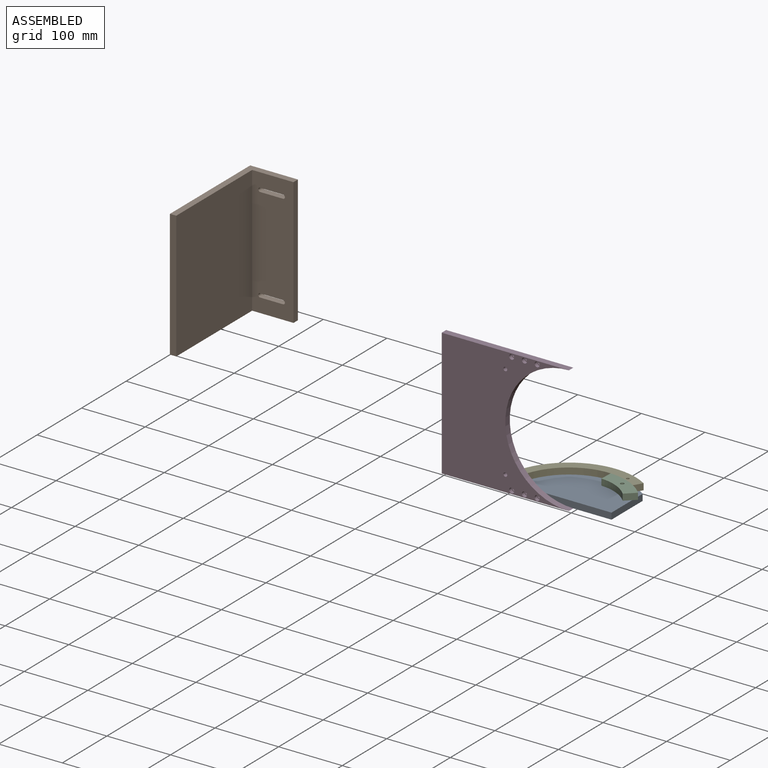
[diagram: assembled view]
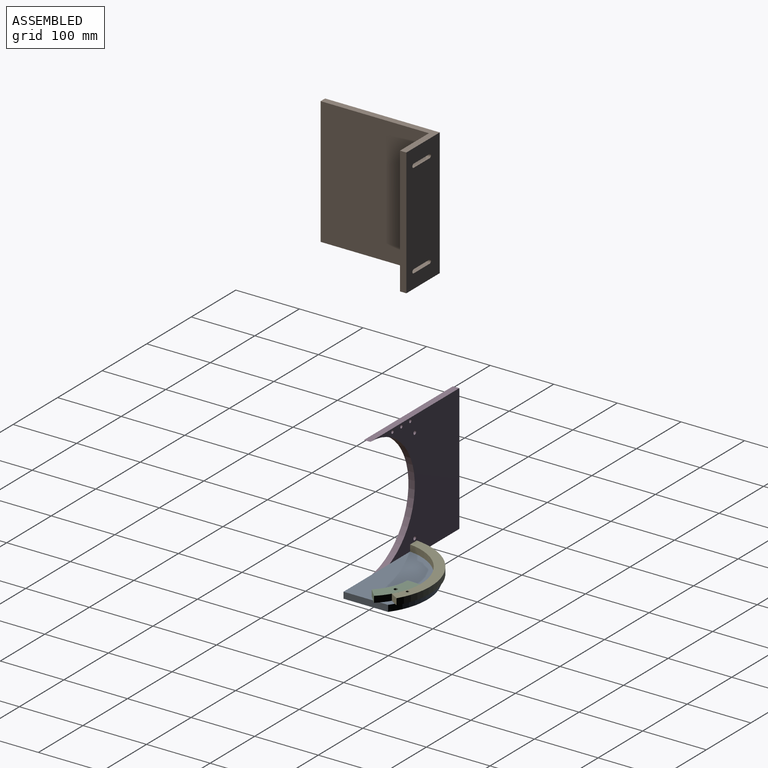
[diagram: assembled view, second angle]
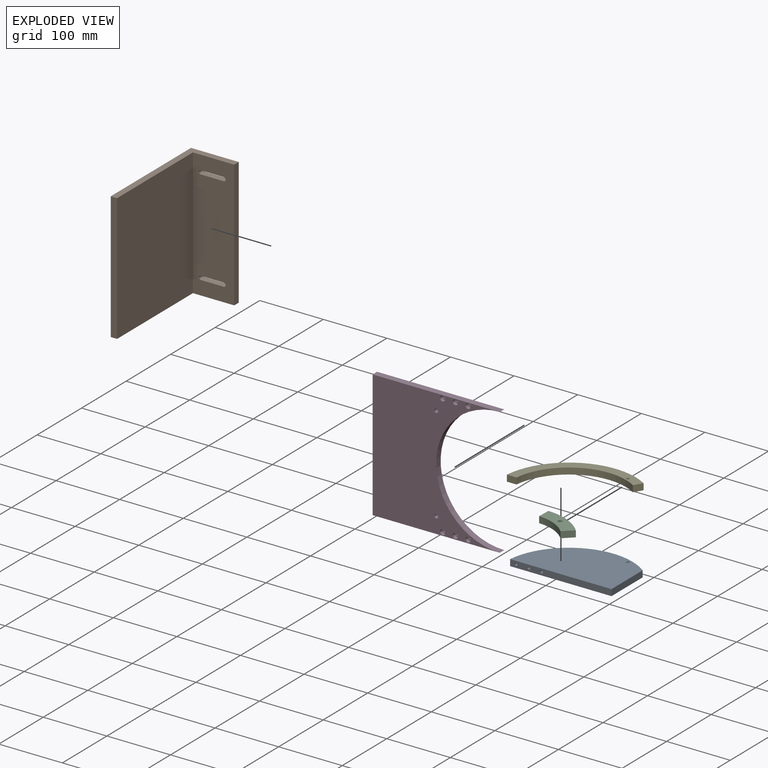
[diagram: exploded view]
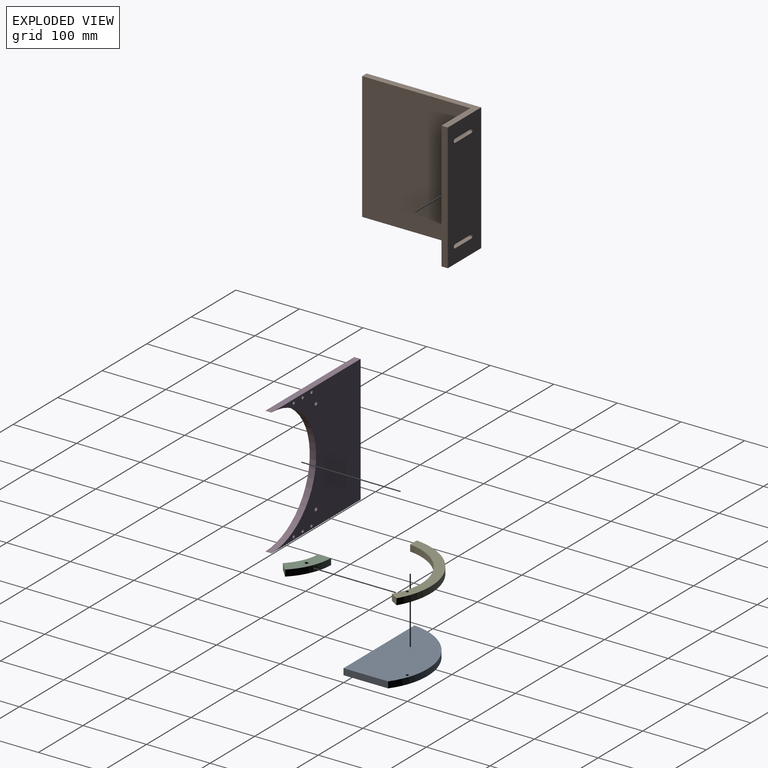
[diagram: exploded view, second angle]
ASSEMBLY  parts=5 mates=3
PART A: 12 faces, bbox 159.5x90x10 mm
  f0: cylinder r=100mm len=159.5mm, axis (0,0,-1), area 2114.1mm2, adj f1,f2,f4,f5
  f1: plane 159.5x10mm, normal (0,-1,0), area 1553.4mm2, adj f0,f2,f4,f5,f6,f8,f10
  f2: plane 70x10mm, normal (1,0,0), area 700mm2, adj f0,f1,f4,f5
  f3: cylinder r=2.32mm len=10mm, axis (0,0,-1), area 145.6mm2, adj f4,f5
  f4: plane 159.5x90mm, normal (0,0,1), area 11856.3mm2, adj f0,f1,f2,f3
  f5: plane 159.5x90mm, normal (0,0,-1), area 11856.3mm2, adj f0,f1,f2,f3
  f6: cylinder r=2.1mm len=25mm, axis (0,-1,0), area 329.9mm2, adj f1,f7
  f7: plane 4.2x4.2mm, normal (0,-1,0), area 13.9mm2, adj f6
  f8: cylinder r=2.1mm len=25mm, axis (0,-1,0), area 329.9mm2, adj f1,f9
  f9: plane 4.2x4.2mm, normal (0,-1,0), area 13.9mm2, adj f8
  f10: cylinder r=2.1mm len=25mm, axis (0,-1,0), area 329.9mm2, adj f1,f11
  f11: plane 4.2x4.2mm, normal (0,-1,0), area 13.9mm2, adj f10
PART B: 16 faces, bbox 180.3x200x75 mm
  f0: plane 200x75mm, normal (1,0,0), area 14515.8mm2, adj f2,f3,f6,f7,f8,f9,f10,f11
  f1: plane 200x65mm, normal (-1,0,0), area 12515.8mm2, adj f2,f3,f5,f7,f8,f9,f10,f11
  f2: plane 180.29x75mm, normal (0,-1,0), area 2452.9mm2, adj f0,f1,f4,f5,f6,f7
  f3: plane 180.29x75mm, normal (0,1,0), area 2452.9mm2, adj f0,f1,f4,f5,f6,f7
  f4: plane 200x10mm, normal (-1,0,0), area 2000mm2, adj f2,f3,f5,f6
  f5: plane 200x170.29mm, normal (0,0,1), area 34058.5mm2, adj f1,f2,f3,f4
  f6: plane 200x180.29mm, normal (0,0,-1), area 36058.5mm2, adj f0,f2,f3,f4
  f7: plane 200x10mm, normal (0,0,1), area 2000mm2, adj f0,f1,f2,f3
  f8: plane 35.02x10mm, normal (0,1,0), area 350.2mm2, adj f0,f1,f9,f11
  f9: cylinder r=3mm len=10mm, axis (1,0,0), area 98mm2, adj f0,f1,f8,f10
  f10: plane 35.78x10mm, normal (0,-1,0), area 357.8mm2, adj f0,f1,f9,f11
  f11: cylinder r=3mm len=10mm, axis (1,0,0), area 98mm2, adj f0,f1,f8,f10
  f12: plane 35.02x10mm, normal (0,1,0), area 350.2mm2, adj f0,f1,f13,f15
  f13: cylinder r=3mm len=10mm, axis (1,0,0), area 98mm2, adj f0,f1,f12,f14
  f14: plane 35.78x10mm, normal (0,-1,0), area 357.8mm2, adj f0,f1,f13,f15
  f15: cylinder r=3mm len=10mm, axis (1,0,0), area 98mm2, adj f0,f1,f12,f14
PART C: 7 faces, bbox 55.4x57.3x10 mm
  f0: plane 18.7x10mm, normal (-0.35,-0.94,0), area 200mm2, adj f1,f3,f5,f6
  f1: cylinder r=70mm len=39.01mm, axis (0,0,1), area 549.8mm2, adj f0,f2,f5,f6
  f2: plane 18.24x10mm, normal (0.91,0.41,0), area 200mm2, adj f1,f3,f5,f6
  f3: cylinder r=90mm len=50.16mm, axis (0,0,1), area 706.9mm2, adj f0,f2,f5,f6
  f4: cylinder r=2.93mm len=10mm, axis (0,0,1), area 184mm2, adj f5,f6
  f5: plane 57.25x55.42mm, normal (0,0,-1), area 1229.7mm2, adj f0,f1,f2,f3,f4
  f6: plane 57.25x55.42mm, normal (0,0,1), area 1229.7mm2, adj f0,f1,f2,f3,f4
PART D: 26 faces, bbox 200x200x10 mm
  f0: plane 200x10mm, normal (0,1,0), area 2000mm2, adj f1,f8,f12,f13
  f1: plane 200x10mm, normal (-1,0,0), area 2000mm2, adj f0,f2,f12,f13
  f2: plane 200x10mm, normal (0,-1,0), area 2000mm2, adj f1,f8,f12,f13
  f3: cylinder r=2.5mm len=5mm, axis (0,0,-1), area 70.7mm2, adj f12,f19
  f4: cylinder r=2.5mm len=5mm, axis (0,0,-1), area 70.7mm2, adj f12,f21
  f5: cylinder r=2.5mm len=5mm, axis (0,0,-1), area 70.7mm2, adj f12,f23
  f6: cylinder r=2.5mm len=5mm, axis (0,0,-1), area 70.7mm2, adj f12,f25
  f7: cylinder r=2.5mm len=5mm, axis (0,0,-1), area 70.7mm2, adj f12,f15
  f8: cylinder r=100mm len=200mm, axis (0,0,-1), area 3141.6mm2, adj f0,f2,f12,f13
  f9: cylinder r=3mm len=10mm, axis (0,0,-1), area 188.5mm2, adj f12,f13
  f10: cylinder r=3mm len=10mm, axis (0,0,-1), area 188.5mm2, adj f12,f13
  f11: cylinder r=2.5mm len=5mm, axis (0,0,-1), area 70.7mm2, adj f12,f17
  f12: plane 200x200mm, normal (0,0,1), area 24117.7mm2, adj f0,f1,f2,f3,f4,f5,f6,f7
  f13: plane 200x200mm, normal (0,0,-1), area 23933.9mm2, adj f0,f1,f2,f8,f9,f10,f14,f16
  f14: cylinder r=4mm len=8mm, axis (0,0,-1), area 138.2mm2, adj f13,f15
  f15: plane 8x8mm, normal (0,0,-1), area 30.6mm2, adj f7,f14
  f16: cylinder r=4mm len=8mm, axis (0,0,-1), area 138.2mm2, adj f13,f17
  f17: plane 8x8mm, normal (0,0,-1), area 30.6mm2, adj f11,f16
  f18: cylinder r=4mm len=8mm, axis (0,0,-1), area 138.2mm2, adj f13,f19
  f19: plane 8x8mm, normal (0,0,-1), area 30.6mm2, adj f3,f18
  f20: cylinder r=4mm len=8mm, axis (0,0,-1), area 138.2mm2, adj f13,f21
  f21: plane 8x8mm, normal (0,0,-1), area 30.6mm2, adj f4,f20
  f22: cylinder r=4mm len=8mm, axis (0,0,-1), area 138.2mm2, adj f13,f23
  f23: plane 8x8mm, normal (0,0,-1), area 30.6mm2, adj f5,f22
  f24: cylinder r=4mm len=8mm, axis (0,0,-1), area 138.2mm2, adj f13,f25
  f25: plane 8x8mm, normal (0,0,-1), area 30.6mm2, adj f6,f24
PART E: 7 faces, bbox 159.3x95x10 mm
  f0: plane 12.8x10mm, normal (0.85,-0.52,0), area 150mm2, adj f1,f3,f5,f6
  f1: cylinder r=105mm len=159.26mm, axis (0,0,1), area 2125mm2, adj f0,f2,f5,f6
  f2: plane 15.08x10mm, normal (0,-1,0), area 150.8mm2, adj f1,f3,f5,f6
  f3: cylinder r=90mm len=136.36mm, axis (0,0,1), area 1807.1mm2, adj f0,f2,f5,f6
  f4: cylinder r=2.32mm len=10mm, axis (0,0,1), area 145.6mm2, adj f5,f6
  f5: plane 159.26x95mm, normal (0,0,-1), area 2932.2mm2, adj f0,f1,f2,f3,f4
  f6: plane 159.26x95mm, normal (0,0,1), area 2932.2mm2, adj f0,f1,f2,f3,f4
PLACE A t=(-57.66,-58.59,-157.15)mm
PLACE B rot(axis=(0.58,0.58,0.58),120deg) t=(-449.91,712.68,188.59)mm
PLACE C rot(axis=(0.2,-0.98,0),180deg) t=(38.1,-39.52,-147.15)mm
PLACE D rot(axis=(-1,0,0),90deg) t=(-57.66,191.41,-57.15)mm fixed
PLACE E rot(axis=(0,0,1),0deg) t=(-57.66,-58.59,-137.15)mm
MATE revolute E.f3 <-> C.f3  axis (0,0,-1) through (-57.66,191.41,-147.15)mm
MATE fastened E.f4 <-> A.f3  axis (0,0,-1) through (-27.76,280.96,-147.15)mm
MATE fastened D.f5 <-> A.f10  axis (0,1,0) through (-107.66,201.41,-152.15)mm
